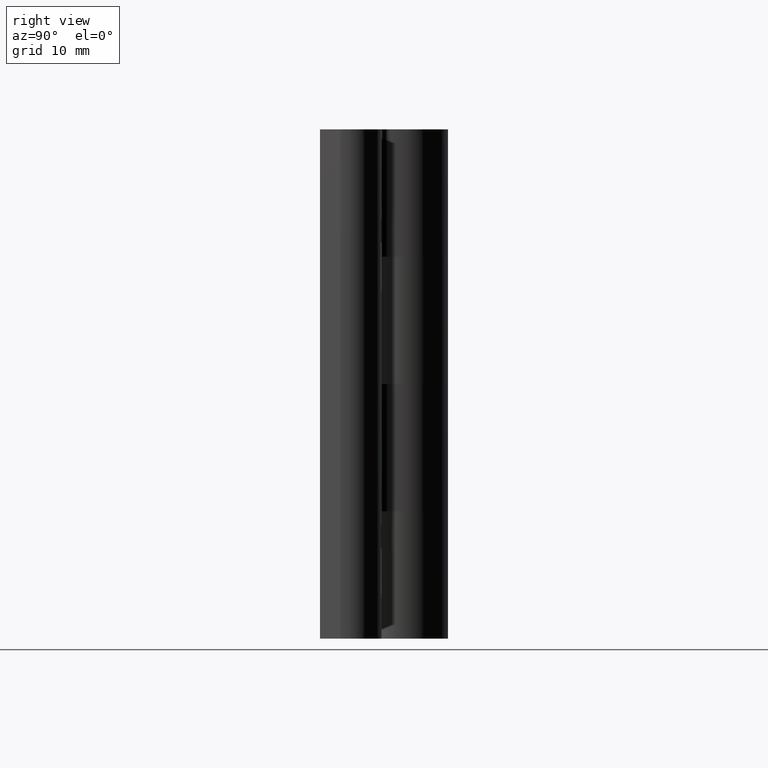
[diagram: clean part render]
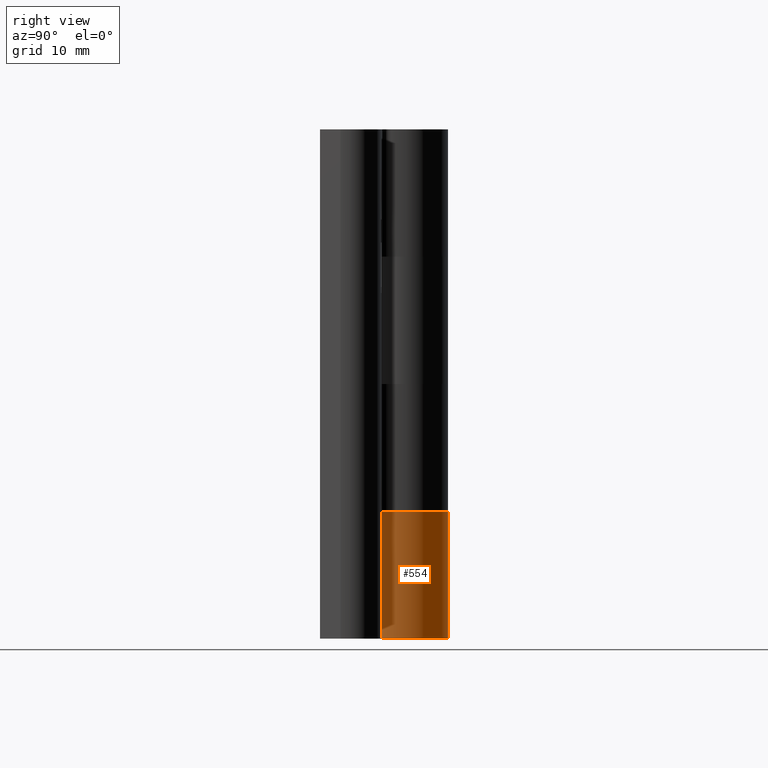
[diagram: same view with one face highlighted and labeled with its STEP entity id]
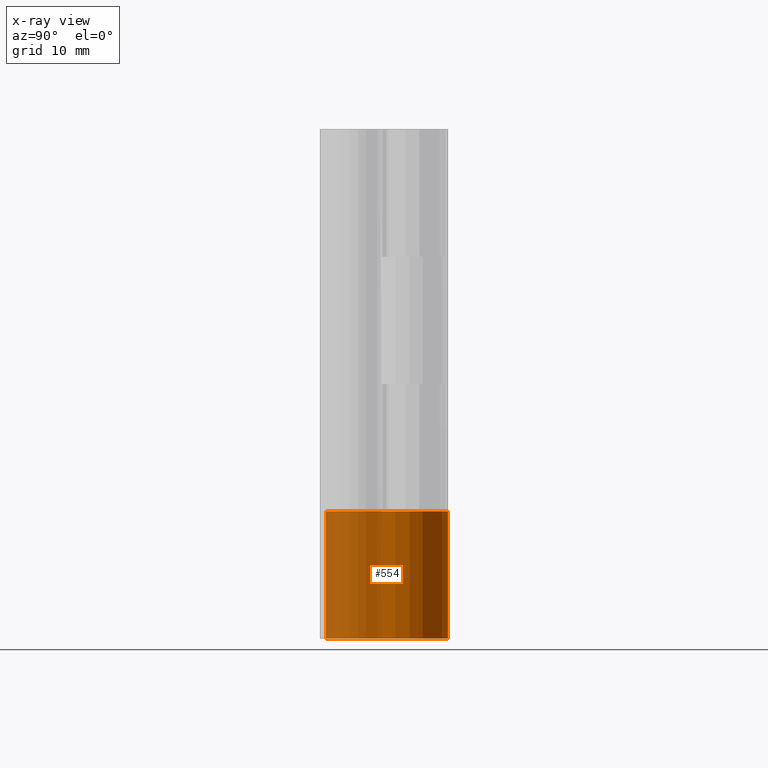
[diagram: x-ray of the same camera — body ghosted, the highlighted face saturated]
A machine part, right view. The second image highlights one B-rep face of the part: STEP entity #554.
The next image is the same camera in x-ray: the body ghosted, the highlighted face saturated — about 45% of this face is hidden behind the body in this view.
In plain terms, the highlighted cylindrical surface (partial cylindrical patch) has radius 6 mm, axis along (0, 0, -1).
Its self-contained STEP definition (entity closure, byte-faithful):
#61=LINE('',#911,#104);
#62=LINE('',#918,#105);
#104=VECTOR('',#716,12.5);
#105=VECTOR('',#725,12.5);
#170=FACE_OUTER_BOUND('',#210,.T.);
#210=EDGE_LOOP('',(#452,#453,#454,#455));
#249=CIRCLE('',#595,6.);
#254=CIRCLE('',#604,6.);
#298=VERTEX_POINT('',#899);
#299=VERTEX_POINT('',#901);
#301=VERTEX_POINT('',#909);
#303=VERTEX_POINT('',#916);
#355=EDGE_CURVE('',#299,#298,#249,.T.);
#360=EDGE_CURVE('',#298,#301,#61,.T.);
#362=EDGE_CURVE('',#303,#301,#254,.T.);
#363=EDGE_CURVE('',#299,#303,#62,.T.);
#452=ORIENTED_EDGE('',*,*,#362,.F.);
#453=ORIENTED_EDGE('',*,*,#363,.F.);
#454=ORIENTED_EDGE('',*,*,#355,.T.);
#455=ORIENTED_EDGE('',*,*,#360,.T.);
#537=CYLINDRICAL_SURFACE('',#603,6.);
#554=ADVANCED_FACE('',(#170),#537,.T.);
#595=AXIS2_PLACEMENT_3D('',#902,#703,#704);
#603=AXIS2_PLACEMENT_3D('',#915,#721,#722);
#604=AXIS2_PLACEMENT_3D('',#917,#723,#724);
#703=DIRECTION('center_axis',(0.,0.,1.));
#704=DIRECTION('ref_axis',(1.,0.,0.));
#716=DIRECTION('',(0.,0.,1.));
#721=DIRECTION('center_axis',(0.,0.,-1.));
#722=DIRECTION('ref_axis',(1.,0.,0.));
#723=DIRECTION('center_axis',(0.,0.,1.));
#724=DIRECTION('ref_axis',(1.,0.,0.));
#725=DIRECTION('',(0.,0.,1.));
#899=CARTESIAN_POINT('',(-5.9846743044724,6.92857142857142,-25.));
#901=CARTESIAN_POINT('',(0.,0.5,-25.));
#902=CARTESIAN_POINT('Origin',(1.30104260698261E-15,6.5,-25.));
#909=CARTESIAN_POINT('',(-5.9846743044724,6.92857142857142,-12.5));
#911=CARTESIAN_POINT('',(-5.9846743044724,6.92857142857142,-25.));
#915=CARTESIAN_POINT('Origin',(1.30104260698261E-15,6.5,-25.));
#916=CARTESIAN_POINT('',(0.,0.5,-12.5));
#917=CARTESIAN_POINT('Origin',(1.30104260698261E-15,6.5,-12.5));
#918=CARTESIAN_POINT('',(0.,0.5,-25.));